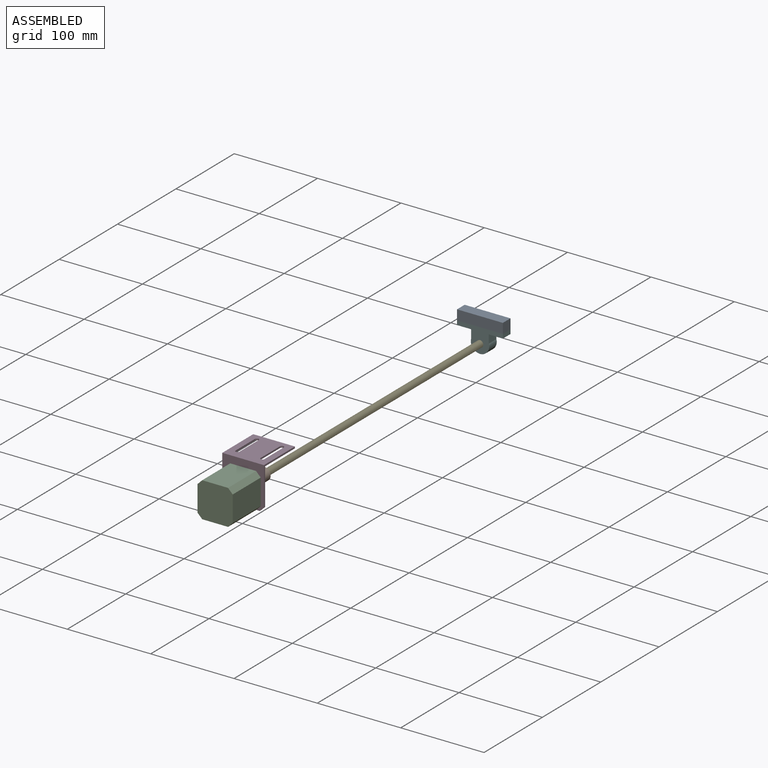
[diagram: assembled view]
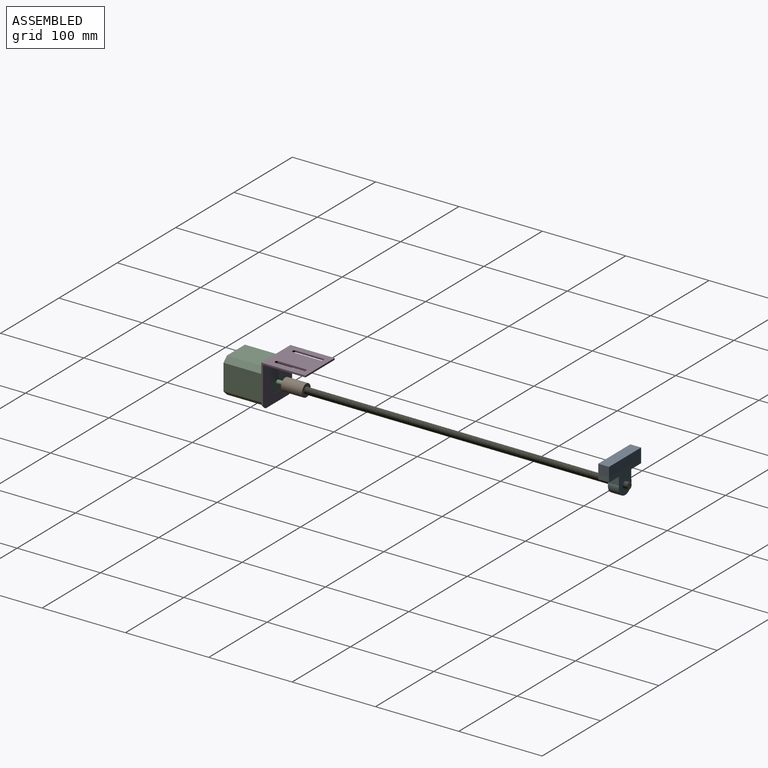
[diagram: assembled view, second angle]
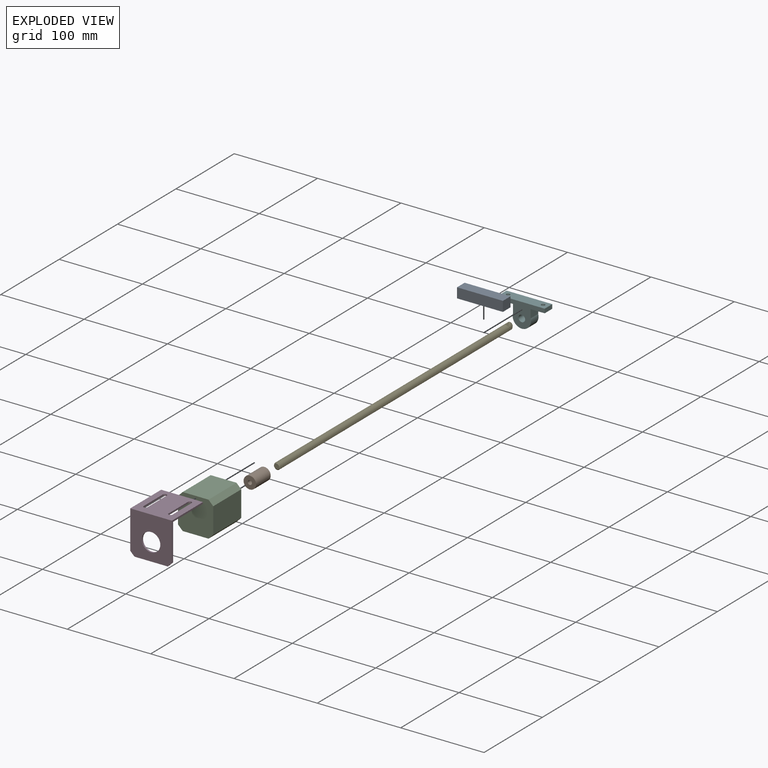
[diagram: exploded view]
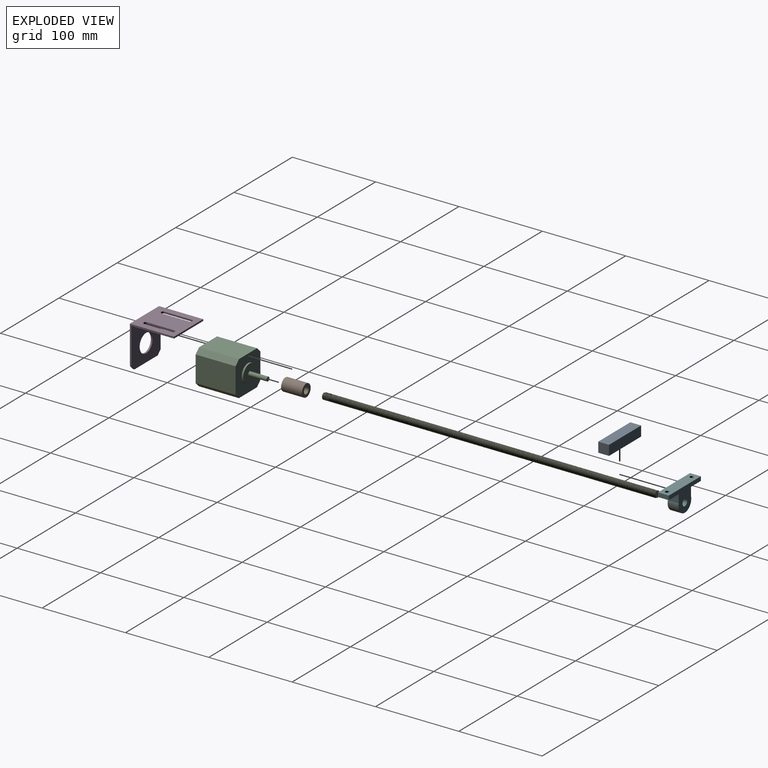
[diagram: exploded view, second angle]
ASSEMBLY  parts=6 mates=5
PART A: 6 faces, bbox 55x12x13 mm
  f0: plane 13x12mm, normal (-1,0,0), area 156mm2, adj f1,f3,f4,f5
  f1: plane 55x12mm, normal (0,0,-1), area 660mm2, adj f0,f2,f4,f5
  f2: plane 13x12mm, normal (1,0,0), area 156mm2, adj f1,f3,f4,f5
  f3: plane 55x12mm, normal (0,0,1), area 660mm2, adj f0,f2,f4,f5
  f4: plane 55x13mm, normal (0,1,0), area 715mm2, adj f0,f1,f2,f3
  f5: plane 55x13mm, normal (0,-1,0), area 715mm2, adj f0,f1,f2,f3
PART B: 6 faces, bbox 15x15x25 mm
  f0: cylinder r=7.5mm len=25mm, axis (0,0,-1), area 1178.1mm2, adj f1,f2
  f1: plane 15x15mm, normal (0,0,1), area 157.1mm2, adj f0,f3
  f2: plane 15x15mm, normal (0,0,-1), area 126.4mm2, adj f0,f5
  f3: cylinder r=2.5mm len=12.5mm, axis (0,0,-1), area 196.3mm2, adj f1,f4
  f4: plane 8x8mm, normal (0,0,-1), area 30.6mm2, adj f3,f5
  f5: cylinder r=4mm len=12.5mm, axis (0,0,-1), area 314.2mm2, adj f2,f4
PART C: 14 faces, bbox 42.3x42.3x72 mm
  f0: plane 48x31mm, normal (0,-1,0), area 1488mm2, adj f1,f7,f8,f9
  f1: plane 48x5.65mm, normal (-0.71,-0.71,0), area 383.5mm2, adj f0,f2,f8,f9
  f2: plane 48x31mm, normal (-1,0,0), area 1488mm2, adj f1,f3,f8,f9
  f3: plane 48x5.65mm, normal (-0.71,0.71,0), area 383.5mm2, adj f2,f4,f8,f9
  f4: plane 48x31mm, normal (0,1,0), area 1488mm2, adj f3,f5,f8,f9
  f5: plane 48x5.65mm, normal (0.71,0.71,0), area 383.5mm2, adj f4,f6,f8,f9
  f6: plane 48x31mm, normal (1,0,0), area 1488mm2, adj f5,f7,f8,f9
  f7: plane 48x5.65mm, normal (0.71,-0.71,0), area 383.5mm2, adj f0,f6,f8,f9
  f8: plane 42.3x42.3mm, normal (0,0,-1), area 1725.4mm2, adj f0,f1,f2,f3,f4,f5,f6,f7
  f9: plane 42.3x42.3mm, normal (0,0,1), area 1345.3mm2, adj f0,f1,f2,f3,f4,f5,f6,f7
  f10: cylinder r=11mm len=22mm, axis (0,0,-1), area 138.2mm2, adj f9,f11
  f11: plane 22x22mm, normal (0,0,1), area 360.5mm2, adj f10,f12
  f12: cylinder r=2.5mm len=22mm, axis (0,0,-1), area 345.6mm2, adj f11,f13
  f13: plane 5x5mm, normal (0,0,1), area 19.6mm2, adj f12
PART D: 19 faces, bbox 53x51x50 mm
  f0: plane 53x50mm, normal (0,1,0), area 2311.5mm2, adj f3,f4,f6,f7,f11,f12,f13,f14
  f1: plane 51x50mm, normal (0,-1,0), area 2211.5mm2, adj f4,f5,f6,f7,f11,f12,f13,f14
  f2: plane 40x2mm, normal (0,-1,0), area 80mm2, adj f3,f5,f8,f9
  f3: plane 51x50mm, normal (-1,0,0), area 2141.4mm2, adj f0,f2,f6,f7,f8,f9,f10
  f4: plane 50x2mm, normal (1,0,0), area 100mm2, adj f0,f1,f6,f7
  f5: plane 50x49mm, normal (1,0,0), area 2041.4mm2, adj f1,f2,f6,f7,f8,f9,f10
  f6: plane 53x46mm, normal (0,0,1), area 194mm2, adj f0,f1,f3,f4,f5,f9
  f7: plane 53x46mm, normal (0,0,-1), area 194mm2, adj f0,f1,f3,f4,f5,f8
  f8: plane 5x5mm, normal (0,-0.71,-0.71), area 14.1mm2, adj f2,f3,f5,f7
  f9: plane 5x5mm, normal (0,-0.71,0.71), area 14.1mm2, adj f2,f3,f5,f6
  f10: cylinder r=11.05mm len=22.1mm, axis (1,0,0), area 138.9mm2, adj f3,f5
  f11: cylinder r=2.31mm len=4.62mm, axis (0,-1,0), area 14.5mm2, adj f0,f1,f12,f14
  f12: plane 33x2mm, normal (0,0,1), area 66mm2, adj f0,f1,f11,f13
  f13: cylinder r=2.31mm len=4.62mm, axis (0,-1,0), area 14.5mm2, adj f0,f1,f12,f14
  f14: plane 33x2mm, normal (0,0,-1), area 66mm2, adj f0,f1,f11,f13
  f15: cylinder r=2.31mm len=4.62mm, axis (0,-1,0), area 14.5mm2, adj f0,f1,f16,f18
  f16: plane 33x2mm, normal (0,0,1), area 66mm2, adj f0,f1,f15,f17
  f17: cylinder r=2.31mm len=4.62mm, axis (0,-1,0), area 14.5mm2, adj f0,f1,f16,f18
  f18: plane 33x2mm, normal (0,0,-1), area 66mm2, adj f0,f1,f15,f17
PART E: 8 faces, bbox 10.5x403.1x9.2 mm
  f0: cylinder r=4mm len=399.2mm, axis (0,-1,0), area 23189.4mm2, adj f1,f3,f4,f5,f6,f7
  f1: plane 9.24x8.52mm, normal (0,1,0), area 41.8mm2, adj f0,f3,f4
  f2: plane 6.7x6.7mm, normal (0,-1,0), area 30.3mm2, adj f5,f6,f7
  f3: plane 1.65x0.95mm, normal (1,0,0), area 0.8mm2, adj f0,f1,f6
  f4: bspline ~400.95x9.24mm, area 7580.4mm2, adj f0,f1,f5,f6
  f5: plane 1.65x0.95mm, normal (-1,0,0), area 0.5mm2, adj f0,f2,f4,f7
  f6: bspline ~400.95x9.24mm, area 7584.3mm2, adj f0,f2,f3,f4,f7
  f7: cone r=3.2mm half-angle=45deg, axis (0,1,0), area 11mm2, adj f0,f2,f5,f6
PART F: 17 faces, bbox 55x29x13 mm
  f0: plane 13x5mm, normal (-1,0,0), area 65mm2, adj f1,f10,f11,f12
  f1: plane 55x13mm, normal (0,1,0), area 683.2mm2, adj f0,f2,f11,f12,f13,f15
  f2: plane 13x5mm, normal (1,0,0), area 65mm2, adj f1,f3,f11,f12
  f3: plane 16.94x13mm, normal (0,-1,0), area 191.9mm2, adj f2,f4,f11,f12,f16
  f4: cylinder r=16.75mm len=13mm, axis (0,0,-1), area 0.4mm2, adj f3,f5,f11,f12
  f5: plane 13x9.99mm, normal (1,0,0), area 129.8mm2, adj f4,f6,f11,f12
  f6: cylinder r=11mm len=22mm, axis (0,0,-1), area 528.1mm2, adj f5,f7,f11,f12
  f7: plane 13x9.99mm, normal (-1,0,0), area 129.8mm2, adj f6,f8,f11,f12
  f8: cylinder r=16.75mm len=13mm, axis (0,0,-1), area 0.4mm2, adj f7,f10,f11,f12
  f9: cylinder r=4mm len=13mm, axis (0,0,-1), area 326.7mm2, adj f11,f12
  f10: plane 16.94x13mm, normal (0,-1,0), area 191.9mm2, adj f0,f8,f11,f12,f14
  f11: plane 55x29mm, normal (0,0,1), area 691.7mm2, adj f0,f1,f2,f3,f4,f5,f6,f7
  f12: plane 55x29mm, normal (0,0,-1), area 691.7mm2, adj f0,f1,f2,f3,f4,f5,f6,f7
  f13: cylinder r=2.25mm len=4.5mm, axis (0,-1,0), area 60.1mm2, adj f1,f14
  f14: cone r=2.25mm half-angle=45deg, axis (0,-1,0), area 17.5mm2, adj f10,f13
  f15: cylinder r=2.25mm len=4.5mm, axis (0,-1,0), area 60.1mm2, adj f1,f16
  f16: cone r=2.25mm half-angle=45deg, axis (0,-1,0), area 17.5mm2, adj f3,f15
PLACE A rot(axis=(-1,0,0),90deg) t=(-75.09,397.6,6.47)mm
PLACE B rot(axis=(1,0,0),90deg) t=(-71.96,57.34,17.72)mm
PLACE C rot(axis=(-1,0,0),90deg) t=(-67.78,20.84,-48.89)mm
PLACE D rot(axis=(0.58,0.58,0.58),120deg) t=(-138.71,79.17,34.41)mm
PLACE E rot(axis=(0,-1,0),0deg) t=(-113.79,44.84,-69.41)mm
PLACE F rot(axis=(0,0.71,0.71),180deg) t=(-148.27,426.84,21.08)mm
MATE fastened D.f10 <-> C.f10  axis (0,-1,0) through (-113.71,20.84,-23.38)mm
MATE fastened B.f0 <-> E.f2  axis (0,1,0) through (-113.71,44.84,-23.38)mm
MATE fastened E.f0 <-> F.f4  axis (0,1,0) through (-113.79,444.84,-23.53)mm
MATE fastened B.f0 <-> C.f10  axis (0,1,0) through (-113.71,44.84,-23.38)mm
MATE fastened F.f1 <-> A.f4  axis (0,0,1) through (-86.29,439.84,-5.53)mm
